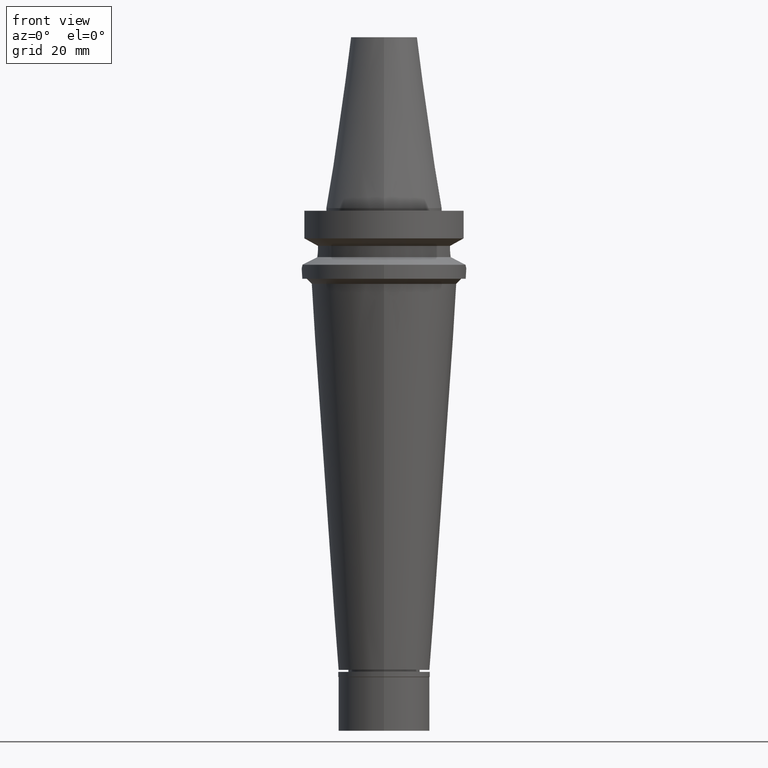
[diagram: clean part render]
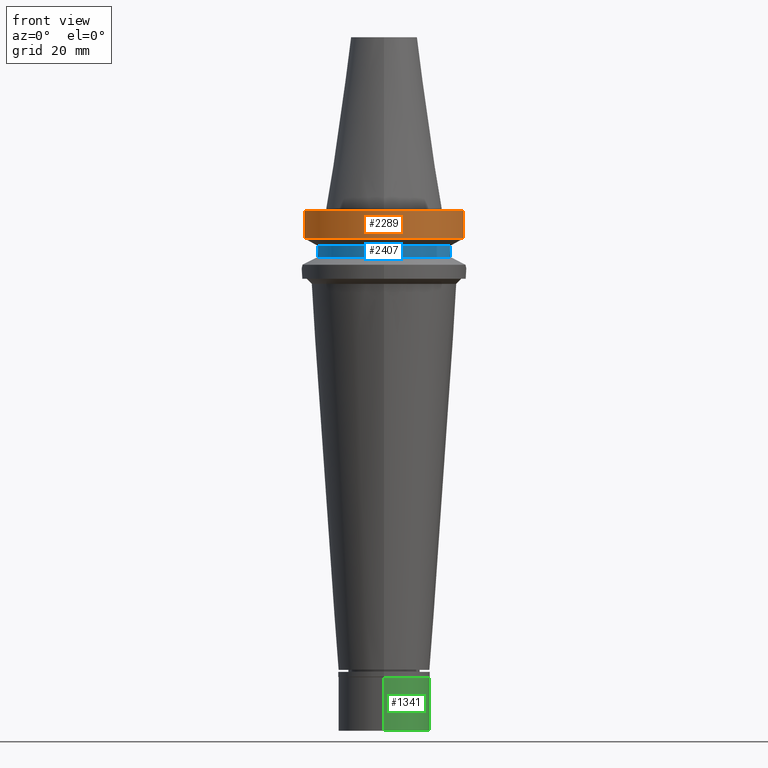
[diagram: same view with three faces highlighted in distinct colors, each labeled with its STEP entity id]
A machine part, front view with three faces highlighted in distinct colors.
Their STEP definitions:

[orange] entity #2289 — the highlighted cylindrical surface (partial cylindrical patch) has radius 31.5 mm, axis along (0, 0, -1).
#37 = VECTOR ( 'NONE', #614, 1000.000000000000114 ) ;
#79 = CIRCLE ( 'NONE', #1700, 31.50000000000000000 ) ;
#221 = EDGE_CURVE ( 'NONE', #502, #2668, #948, .T. ) ;
#232 = DIRECTION ( 'NONE',  ( 0.0000000000000000000, -1.000000000000000000, 0.0000000000000000000 ) ) ;
#361 = DIRECTION ( 'NONE',  ( 0.0000000000000000000, -1.000000000000000000, 0.0000000000000000000 ) ) ;
#415 = DIRECTION ( 'NONE',  ( 0.0000000000000000000, 0.0000000000000000000, 1.000000000000000000 ) ) ;
#450 = CARTESIAN_POINT ( 'NONE',  ( 30.45402272279000044, -8.050000000000000711, -1.000000000000000000 ) ) ;
#502 = VERTEX_POINT ( 'NONE', #709 ) ;
#519 = DIRECTION ( 'NONE',  ( -1.036649194657017645E-07, -3.921750933745068257E-07, -0.9999999999999177325 ) ) ;
#614 = DIRECTION ( 'NONE',  ( 1.805835241063990690E-08, -6.831694115686962827E-08, 0.9999999999999974465 ) ) ;
#626 = CARTESIAN_POINT ( 'NONE',  ( 0.0000000000000000000, 1.065333950388000029E-14, -11.56550565266999975 ) ) ;
#709 = CARTESIAN_POINT ( 'NONE',  ( -30.45402291358000113, -8.049999278195999253, -11.56551215380000031 ) ) ;
#731 = CARTESIAN_POINT ( 'NONE',  ( 0.0000000000000000000, 2.183973869259000036E-14, 78.33500000000000796 ) ) ;
#887 = VERTEX_POINT ( 'NONE', #2023 ) ;
#893 = VERTEX_POINT ( 'NONE', #2256 ) ;
#943 = AXIS2_PLACEMENT_3D ( 'NONE', #731, #947, #232 ) ;
#947 = DIRECTION ( 'NONE',  ( 0.0000000000000000000, 0.0000000000000000000, -1.000000000000000000 ) ) ;
#948 = CIRCLE ( 'NONE', #2710, 31.50000000000000000 ) ;
#968 = ORIENTED_EDGE ( 'NONE', *, *, #221, .T. ) ;
#979 = ORIENTED_EDGE ( 'NONE', *, *, #2714, .F. ) ;
#1023 = LINE ( 'NONE', #1982, #37 ) ;
#1100 = ORIENTED_EDGE ( 'NONE', *, *, #1135, .F. ) ;
#1135 = EDGE_CURVE ( 'NONE', #893, #2668, #2677, .T. ) ;
#1143 = ORIENTED_EDGE ( 'NONE', *, *, #2459, .T. ) ;
#1567 = EDGE_LOOP ( 'NONE', ( #979, #968, #1100, #1143 ) ) ;
#1616 = VECTOR ( 'NONE', #519, 1000.000000000000114 ) ;
#1700 = AXIS2_PLACEMENT_3D ( 'NONE', #2045, #2956, #361 ) ;
#1724 = FACE_OUTER_BOUND ( 'NONE', #1567, .T. ) ;
#1982 = CARTESIAN_POINT ( 'NONE',  ( -30.45402291358000113, -8.049999278195999253, -11.56551215380000031 ) ) ;
#2023 = CARTESIAN_POINT ( 'NONE',  ( -30.45402272279000044, -8.050000000000000711, -1.000000000000000000 ) ) ;
#2045 = CARTESIAN_POINT ( 'NONE',  ( 0.0000000000000000000, 2.183973869259000036E-14, -1.000000000000000000 ) ) ;
#2177 = CYLINDRICAL_SURFACE ( 'NONE', #943, 31.50000000000000000 ) ;
#2256 = CARTESIAN_POINT ( 'NONE',  ( 30.45402272279000044, -8.050000000000000711, -1.000000000000000000 ) ) ;
#2289 = ADVANCED_FACE ( 'NONE', ( #1724 ), #2177, .T. ) ;
#2459 = EDGE_CURVE ( 'NONE', #893, #887, #79, .T. ) ;
#2668 = VERTEX_POINT ( 'NONE', #2952 ) ;
#2677 = LINE ( 'NONE', #450, #1616 ) ;
#2710 = AXIS2_PLACEMENT_3D ( 'NONE', #626, #415, #2792 ) ;
#2714 = EDGE_CURVE ( 'NONE', #502, #887, #1023, .T. ) ;
#2792 = DIRECTION ( 'NONE',  ( 0.0000000000000000000, -1.000000000000000000, 0.0000000000000000000 ) ) ;
#2952 = CARTESIAN_POINT ( 'NONE',  ( 30.45402272279000044, -8.049999999999000622, -11.56550565266999975 ) ) ;
#2956 = DIRECTION ( 'NONE',  ( 0.0000000000000000000, 0.0000000000000000000, -1.000000000000000000 ) ) ;

[blue] entity #2407 — the highlighted cylindrical surface (partial cylindrical patch) has radius 26.5 mm, axis along (0, 0, -1).
#54 = VERTEX_POINT ( 'NONE', #2420 ) ;
#153 = EDGE_CURVE ( 'NONE', #1073, #1360, #1601, .T. ) ;
#162 = ORIENTED_EDGE ( 'NONE', *, *, #1794, .F. ) ;
#234 = CARTESIAN_POINT ( 'NONE',  ( -25.39164478449575668, -7.584820969897874576, -17.65194245035706544 ) ) ;
#339 = VERTEX_POINT ( 'NONE', #1366 ) ;
#534 = CARTESIAN_POINT ( 'NONE',  ( -25.33292553851982021, -7.777985707516910097, -17.02558215515376716 ) ) ;
#571 = CYLINDRICAL_SURFACE ( 'NONE', #2399, 26.50000000000000000 ) ;
#587 = ORIENTED_EDGE ( 'NONE', *, *, #1981, .T. ) ;
#653 = CIRCLE ( 'NONE', #1871, 26.49999999999998224 ) ;
#706 = CARTESIAN_POINT ( 'NONE',  ( -25.32550226136643445, -7.802082245155482099, -16.93251888163180396 ) ) ;
#763 = ORIENTED_EDGE ( 'NONE', *, *, #153, .F. ) ;
#770 = CARTESIAN_POINT ( 'NONE',  ( 25.28049982587672062, -7.946985634402431664, -16.24435369772057314 ) ) ;
#817 = CARTESIAN_POINT ( 'NONE',  ( 25.43788636140663684, -7.435506143574531990, -18.11669712823283618 ) ) ;
#907 = CARTESIAN_POINT ( 'NONE',  ( 25.24772266958000344, -8.050000000000000711, -14.45225699861000024 ) ) ;
#951 = CARTESIAN_POINT ( 'NONE',  ( -25.27269246206562769, -7.973290322421786591, -16.24535685341015068 ) ) ;
#969 = CARTESIAN_POINT ( 'NONE',  ( 25.24772266958000344, -8.050000000000000711, -14.94999999999999929 ) ) ;
#1028 = CARTESIAN_POINT ( 'NONE',  ( 0.0000000000000000000, 2.183973869259000036E-14, 78.33500000000000796 ) ) ;
#1037 = EDGE_CURVE ( 'NONE', #339, #54, #653, .T. ) ;
#1073 = VERTEX_POINT ( 'NONE', #907 ) ;
#1109 = CARTESIAN_POINT ( 'NONE',  ( 25.31652055493196940, -7.831184758220203435, -16.81426458566332016 ) ) ;
#1139 = DIRECTION ( 'NONE',  ( -0.9634623335000935818, -0.2678438573619981722, 0.0000000000000000000 ) ) ;
#1186 = CARTESIAN_POINT ( 'NONE',  ( -25.37572817765897071, -7.637723572224845547, -17.49814693645483743 ) ) ;
#1217 = CARTESIAN_POINT ( 'NONE',  ( -25.24772266958000344, -8.050000000000000711, -14.94999999999999929 ) ) ;
#1279 = ORIENTED_EDGE ( 'NONE', *, *, #2924, .F. ) ;
#1316 = CARTESIAN_POINT ( 'NONE',  ( 25.30215616128704781, -7.877576232114722465, -16.61085564858986174 ) ) ;
#1360 = VERTEX_POINT ( 'NONE', #2341 ) ;
#1366 = CARTESIAN_POINT ( 'NONE',  ( -25.53175183775000079, -7.097862220092999941, -18.74774300138999905 ) ) ;
#1433 = VERTEX_POINT ( 'NONE', #2546 ) ;
#1453 = CARTESIAN_POINT ( 'NONE',  ( -25.35411833098771339, -7.708843546317146078, -17.27003765535713953 ) ) ;
#1482 = EDGE_LOOP ( 'NONE', ( #162, #2958, #1279, #763, #587, #3084 ) ) ;
#1483 = CARTESIAN_POINT ( 'NONE',  ( 25.25396593744603990, -8.030896968456843865, -15.59377931114970828 ) ) ;
#1493 = DIRECTION ( 'NONE',  ( 0.0000000000000000000, -1.000000000000000000, 0.0000000000000000000 ) ) ;
#1497 = CARTESIAN_POINT ( 'NONE',  ( -25.32419265906723282, -7.806329682138570369, -16.91574545218071890 ) ) ;
#1559 = DIRECTION ( 'NONE',  ( 0.0000000000000000000, 0.0000000000000000000, -1.000000000000000000 ) ) ;
#1573 = CARTESIAN_POINT ( 'NONE',  ( 25.36818304348079778, -7.663708172131628693, -17.48836484279746628 ) ) ;
#1601 = LINE ( 'NONE', #2405, #2302 ) ;
#1677 = CARTESIAN_POINT ( 'NONE',  ( -25.24772266957999634, -8.049999999999979394, -15.58999073685843051 ) ) ;
#1740 = CARTESIAN_POINT ( 'NONE',  ( 25.29454717857531776, -7.902012029789245773, -16.48868902742446707 ) ) ;
#1785 = B_SPLINE_CURVE_WITH_KNOTS ( 'NONE', 3,
 ( #969, #2192, #1483, #1935, #770, #1740, #1316, #3028, #1109, #2525, #1823, #1573, #817, #2535 ),
 .UNSPECIFIED., .F., .F.,
 ( 4, 2, 2, 1, 1, 2, 2, 4 ),
 ( 0.0000000000000000000, 0.2499999999999805156, 0.3749999999999708011, 0.4374999999999658051, 0.4687499999999645839, 0.4843749999999652500, 0.4999999999999659162, 1.000000000000000000 ),
 .UNSPECIFIED. ) ;
#1794 = EDGE_CURVE ( 'NONE', #339, #1433, #1798, .T. ) ;
#1798 = B_SPLINE_CURVE_WITH_KNOTS ( 'NONE', 3,
 ( #2693, #2636, #2907, #234, #1186, #1453, #2413, #534, #2681, #706, #1497, #951, #1677, #1217 ),
 .UNSPECIFIED., .F., .F.,
 ( 4, 2, 2, 1, 1, 2, 2, 4 ),
 ( 0.0000000000000000000, 0.2500000000000225930, 0.3750000000000351386, 0.4375000000000401901, 0.4687500000000426326, 0.4843750000000427436, 0.5000000000000427436, 1.000000000000000000 ),
 .UNSPECIFIED. ) ;
#1823 = CARTESIAN_POINT ( 'NONE',  ( 25.32121872273786067, -7.815971166074226595, -16.87703378351241312 ) ) ;
#1871 = AXIS2_PLACEMENT_3D ( 'NONE', #1958, #3075, #1139 ) ;
#1935 = CARTESIAN_POINT ( 'NONE',  ( 25.27269574104416350, -7.971769475022774998, -16.08146184953516311 ) ) ;
#1958 = CARTESIAN_POINT ( 'NONE',  ( 0.0000000000000000000, 0.0000000000000000000, -18.74774300138999905 ) ) ;
#1959 = AXIS2_PLACEMENT_3D ( 'NONE', #2267, #1559, #2021 ) ;
#1970 = LINE ( 'NONE', #2921, #3022 ) ;
#1981 = EDGE_CURVE ( 'NONE', #1073, #2845, #2202, .T. ) ;
#2021 = DIRECTION ( 'NONE',  ( 0.9527442516822307583, -0.3037735849057093818, 0.0000000000000000000 ) ) ;
#2143 = DIRECTION ( 'NONE',  ( 1.016655027073999510E-06, 3.188601129083999011E-06, -0.9999999999943997020 ) ) ;
#2192 = CARTESIAN_POINT ( 'NONE',  ( 25.24772266957999989, -8.050000000000000711, -15.27000127552688902 ) ) ;
#2202 = CIRCLE ( 'NONE', #1959, 26.50000000000000711 ) ;
#2267 = CARTESIAN_POINT ( 'NONE',  ( 0.0000000000000000000, 1.065333950388000029E-14, -14.45225699861000024 ) ) ;
#2302 = VECTOR ( 'NONE', #2143, 999.9999999999998863 ) ;
#2341 = CARTESIAN_POINT ( 'NONE',  ( 25.24772266958000344, -8.050000000000000711, -14.94999999999999929 ) ) ;
#2399 = AXIS2_PLACEMENT_3D ( 'NONE', #1028, #2712, #1493 ) ;
#2405 = CARTESIAN_POINT ( 'NONE',  ( 25.24772216353000331, -8.050001587143000847, -14.45224487143999959 ) ) ;
#2407 = ADVANCED_FACE ( 'NONE', ( #2475 ), #571, .T. ) ;
#2413 = CARTESIAN_POINT ( 'NONE',  ( -25.34387967354808424, -7.742345491372923050, -17.15662736175767833 ) ) ;
#2420 = CARTESIAN_POINT ( 'NONE',  ( 25.53175183775000079, -7.097862220092999941, -18.74774300138999905 ) ) ;
#2427 = CARTESIAN_POINT ( 'NONE',  ( -25.24772413111999825, -8.049995416064998466, -14.45229202584999939 ) ) ;
#2475 = FACE_OUTER_BOUND ( 'NONE', #1482, .T. ) ;
#2525 = CARTESIAN_POINT ( 'NONE',  ( 25.31954463780458653, -7.821394976198483562, -16.85491936549449221 ) ) ;
#2535 = CARTESIAN_POINT ( 'NONE',  ( 25.53175183775000079, -7.097862220092999941, -18.74774300138999905 ) ) ;
#2546 = CARTESIAN_POINT ( 'NONE',  ( -25.24772266958000344, -8.050000000000000711, -14.94999999999999929 ) ) ;
#2635 = EDGE_CURVE ( 'NONE', #1433, #2845, #1970, .T. ) ;
#2636 = CARTESIAN_POINT ( 'NONE',  ( -25.48481820018342248, -7.266687417052686726, -18.43221401828698802 ) ) ;
#2681 = CARTESIAN_POINT ( 'NONE',  ( -25.32844325893299242, -7.792538688758869014, -16.96970524096792232 ) ) ;
#2693 = CARTESIAN_POINT ( 'NONE',  ( -25.53175183775000079, -7.097862220092999941, -18.74774300138999905 ) ) ;
#2712 = DIRECTION ( 'NONE',  ( 0.0000000000000000000, 0.0000000000000000000, -1.000000000000000000 ) ) ;
#2845 = VERTEX_POINT ( 'NONE', #2427 ) ;
#2907 = CARTESIAN_POINT ( 'NONE',  ( -25.44392473217403960, -7.408251102518685016, -18.11706870841285877 ) ) ;
#2921 = CARTESIAN_POINT ( 'NONE',  ( -25.24772266958000344, -8.050000000000000711, -14.94999999999999929 ) ) ;
#2924 = EDGE_CURVE ( 'NONE', #1360, #54, #1785, .T. ) ;
#2958 = ORIENTED_EDGE ( 'NONE', *, *, #1037, .T. ) ;
#2984 = DIRECTION ( 'NONE',  ( -2.936548755725931486E-06, 9.210088831163782246E-06, 0.9999999999532754869 ) ) ;
#3022 = VECTOR ( 'NONE', #2984, 1000.000000000000000 ) ;
#3028 = CARTESIAN_POINT ( 'NONE',  ( 25.31205759391835386, -7.845621557329836016, -16.75326793494518540 ) ) ;
#3075 = DIRECTION ( 'NONE',  ( 0.0000000000000000000, 0.0000000000000000000, 1.000000000000000000 ) ) ;
#3084 = ORIENTED_EDGE ( 'NONE', *, *, #2635, .F. ) ;

[green] entity #1341 — the highlighted cylindrical surface (partial cylindrical patch) has radius 17.5 mm, axis along (0, 0, -1).
#271 = EDGE_CURVE ( 'NONE', #2672, #1226, #1456, .T. ) ;
#276 = CARTESIAN_POINT ( 'NONE',  ( 0.0000000000000000000, -17.50000000000000000, -2.000000000000000000 ) ) ;
#312 = EDGE_LOOP ( 'NONE', ( #3110, #2293, #2476, #389 ) ) ;
#389 = ORIENTED_EDGE ( 'NONE', *, *, #2212, .F. ) ;
#393 = VECTOR ( 'NONE', #3118, 1000.000000000000000 ) ;
#437 = VERTEX_POINT ( 'NONE', #1349 ) ;
#439 = DIRECTION ( 'NONE',  ( 0.0000000000000000000, -1.000000000000000000, 0.0000000000000000000 ) ) ;
#469 = EDGE_CURVE ( 'NONE', #437, #2672, #2617, .T. ) ;
#601 = CARTESIAN_POINT ( 'NONE',  ( 0.0000000000000000000, 0.0000000000000000000, -2.000000000000000000 ) ) ;
#739 = DIRECTION ( 'NONE',  ( 0.0000000000000000000, 0.0000000000000000000, -1.000000000000000000 ) ) ;
#964 = CARTESIAN_POINT ( 'NONE',  ( 0.0000000000000000000, 17.50000000000000000, -2.000000000000000000 ) ) ;
#1014 = CARTESIAN_POINT ( 'NONE',  ( 0.0000000000000000000, 0.0000000000000000000, 0.0000000000000000000 ) ) ;
#1074 = FACE_OUTER_BOUND ( 'NONE', #312, .T. ) ;
#1226 = VERTEX_POINT ( 'NONE', #1536 ) ;
#1341 = ADVANCED_FACE ( 'NONE', ( #1074 ), #2032, .T. ) ;
#1344 = DIRECTION ( 'NONE',  ( 0.0000000000000000000, -1.000000000000000000, 0.0000000000000000000 ) ) ;
#1349 = CARTESIAN_POINT ( 'NONE',  ( 0.0000000000000000000, 17.50000000000000000, -2.000000000000000000 ) ) ;
#1452 = VECTOR ( 'NONE', #739, 1000.000000000000000 ) ;
#1456 = LINE ( 'NONE', #2911, #1452 ) ;
#1536 = CARTESIAN_POINT ( 'NONE',  ( 0.0000000000000000000, -17.50000000000000000, -22.50000000000000000 ) ) ;
#1606 = CIRCLE ( 'NONE', #2306, 17.50000000000000000 ) ;
#1628 = DIRECTION ( 'NONE',  ( 0.0000000000000000000, 0.0000000000000000000, -1.000000000000000000 ) ) ;
#1743 = DIRECTION ( 'NONE',  ( 0.0000000000000000000, 0.0000000000000000000, 1.000000000000000000 ) ) ;
#1828 = DIRECTION ( 'NONE',  ( 0.0000000000000000000, 1.000000000000000000, 0.0000000000000000000 ) ) ;
#1974 = LINE ( 'NONE', #964, #393 ) ;
#2032 = CYLINDRICAL_SURFACE ( 'NONE', #2978, 17.50000000000000000 ) ;
#2105 = VERTEX_POINT ( 'NONE', #2365 ) ;
#2212 = EDGE_CURVE ( 'NONE', #437, #2105, #1974, .T. ) ;
#2293 = ORIENTED_EDGE ( 'NONE', *, *, #271, .T. ) ;
#2306 = AXIS2_PLACEMENT_3D ( 'NONE', #2484, #1743, #1344 ) ;
#2365 = CARTESIAN_POINT ( 'NONE',  ( 0.0000000000000000000, 17.50000000000000000, -22.50000000000000000 ) ) ;
#2476 = ORIENTED_EDGE ( 'NONE', *, *, #2701, .T. ) ;
#2484 = CARTESIAN_POINT ( 'NONE',  ( 0.0000000000000000000, 0.0000000000000000000, -22.50000000000000000 ) ) ;
#2529 = DIRECTION ( 'NONE',  ( 0.0000000000000000000, 0.0000000000000000000, -1.000000000000000000 ) ) ;
#2615 = AXIS2_PLACEMENT_3D ( 'NONE', #601, #2529, #1828 ) ;
#2617 = CIRCLE ( 'NONE', #2615, 17.50000000000000000 ) ;
#2672 = VERTEX_POINT ( 'NONE', #276 ) ;
#2701 = EDGE_CURVE ( 'NONE', #1226, #2105, #1606, .T. ) ;
#2911 = CARTESIAN_POINT ( 'NONE',  ( 0.0000000000000000000, -17.50000000000000000, -2.000000000000000000 ) ) ;
#2978 = AXIS2_PLACEMENT_3D ( 'NONE', #1014, #1628, #439 ) ;
#3110 = ORIENTED_EDGE ( 'NONE', *, *, #469, .T. ) ;
#3118 = DIRECTION ( 'NONE',  ( 0.0000000000000000000, 0.0000000000000000000, -1.000000000000000000 ) ) ;